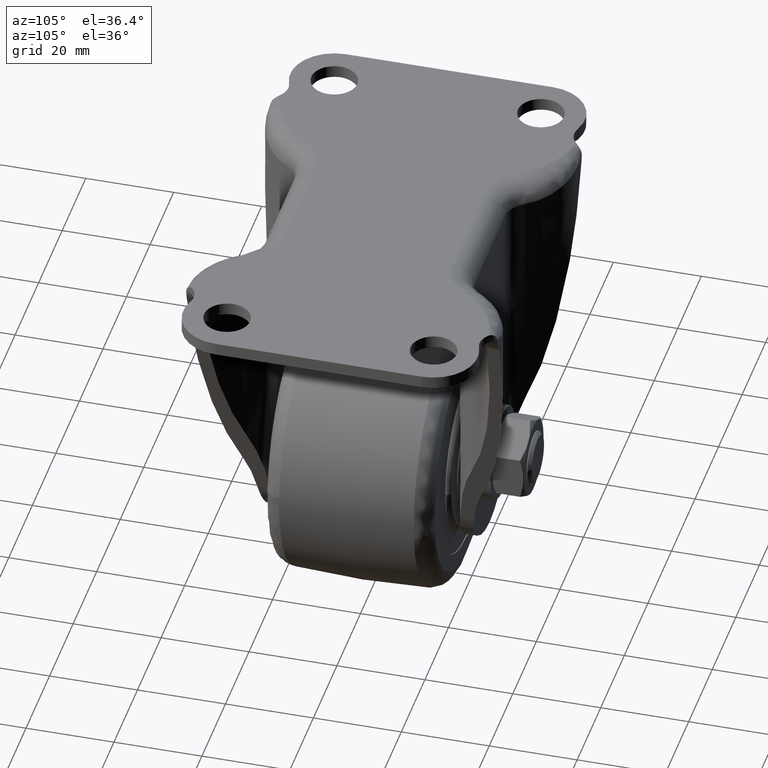
[diagram: clean part render]
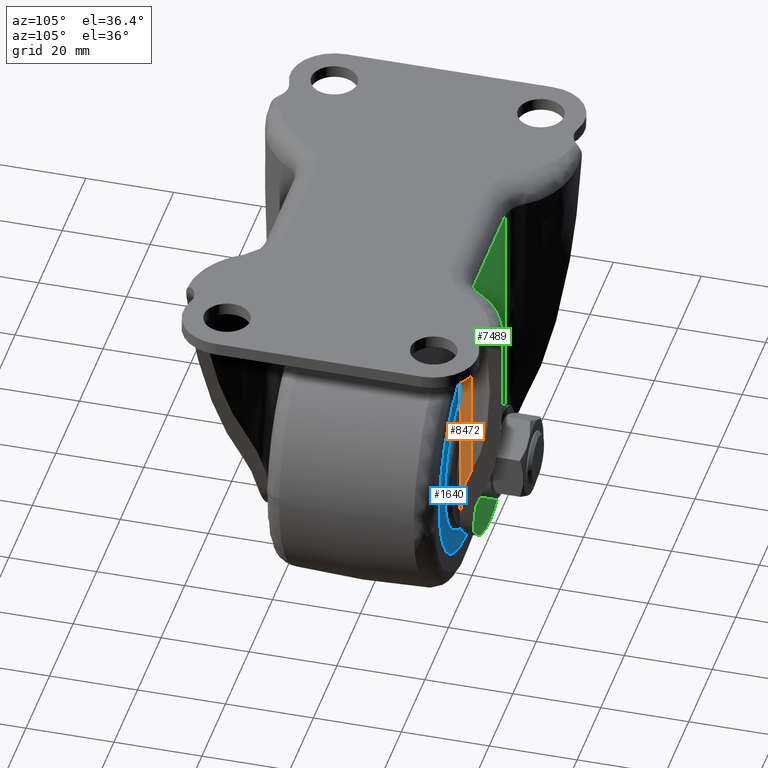
[diagram: same view with three faces highlighted in distinct colors, each labeled with its STEP entity id]
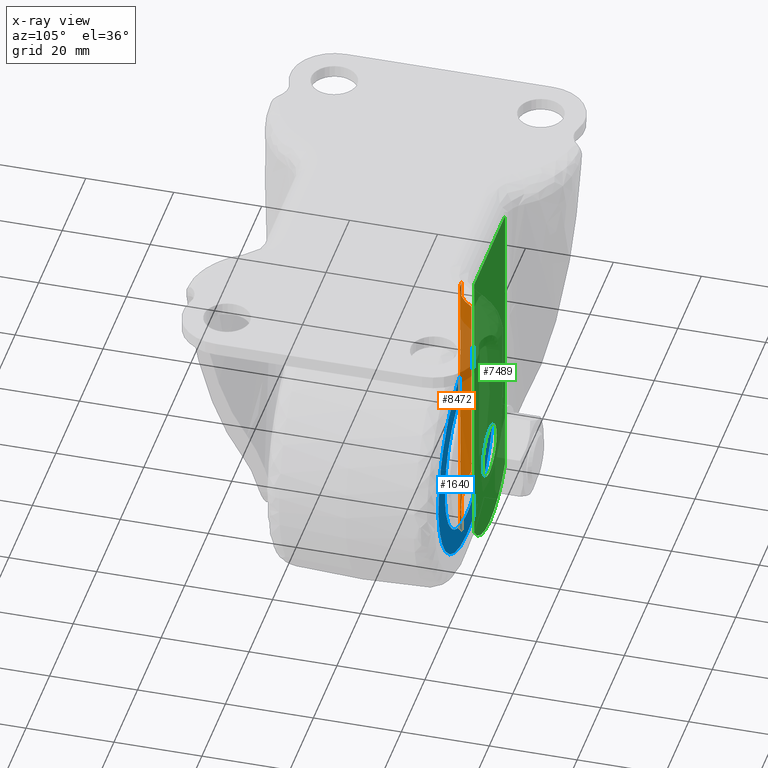
[diagram: x-ray of the same camera — body ghosted, the three highlighted faces saturated]
A machine part, auxiliary view with three faces highlighted in distinct colors.
The next image is the same camera in x-ray (body ghosted, the three faces saturated) — at least one of them is partly hidden behind the body in this view.
Their STEP definitions:

[orange] entity #8472 — the highlighted face is a freeform B-spline surface patch.
#6236=CARTESIAN_POINT('',(21.080107333667101,25.512244897959199,-5.0));
#6237=VERTEX_POINT('',#6236);
#6899=CARTESIAN_POINT('',(21.080107333667101,25.512244897959199,-49.956885919186902));
#6900=VERTEX_POINT('',#6899);
#6901=CARTESIAN_POINT('',(21.080107333667101,25.512244897959199,-49.956885919186902));
#6902=CARTESIAN_POINT('',(21.080107333667101,25.512244897959199,-5.0));
#6903=QUASI_UNIFORM_CURVE('',1,(#6901,#6902),.UNSPECIFIED.,.F.,.U.);
#6904=EDGE_CURVE('',#6900,#6237,#6903,.T.);
#8132=CARTESIAN_POINT('',(13.112529000000020,21.100000000000001,-4.900000000000000));
#8133=VERTEX_POINT('',#8132);
#8228=CARTESIAN_POINT('',(21.080107333667069,25.512244897959171,-5.000000000000004));
#8229=CARTESIAN_POINT('',(20.239276860630088,24.169079037959619,-4.983333333333339));
#8230=CARTESIAN_POINT('',(19.052652351195420,23.044396130704321,-4.966666666666675));
#8231=CARTESIAN_POINT('',(16.280106297463931,21.509029716013110,-4.933333333333345));
#8232=CARTESIAN_POINT('',(14.697171045338949,21.099999942227189,-4.916666666666680));
#8233=CARTESIAN_POINT('',(13.112529000000020,21.100000000000009,-4.900000000000016));
#8234=B_SPLINE_CURVE_WITH_KNOTS('',3,(#8228,#8229,#8230,#8231,#8232,#8233),.UNSPECIFIED.,.F.,.U.,(4,2,4),(0.0,0.500000000000000,1.0),.UNSPECIFIED.);
#8235=EDGE_CURVE('',#6237,#8133,#8234,.T.);
#8302=CARTESIAN_POINT('',(15.788895217503899,21.489058556165649,-67.391547508985795));
#8303=VERTEX_POINT('',#8302);
#8304=CARTESIAN_POINT('',(15.788895217503830,21.489058556165649,-67.391547508986037));
#8305=CARTESIAN_POINT('',(19.194841077491969,22.500668422671041,-56.168880158214748));
#8306=CARTESIAN_POINT('',(21.080107333667069,25.512244897959182,-49.956885919186888));
#8314=(BOUNDED_CURVE()B_SPLINE_CURVE(2,(#8304,#8305,#8306),.UNSPECIFIED.,.F.,.U.)CURVE()GEOMETRIC_REPRESENTATION_ITEM()QUASI_UNIFORM_CURVE()RATIONAL_B_SPLINE_CURVE((1.0,0.935409879223286,1.0))REPRESENTATION_ITEM(''));
#8315=EDGE_CURVE('',#8303,#6900,#8314,.T.);
#8344=CARTESIAN_POINT('',(13.112529000000020,21.100000000000001,-72.615372927514201));
#8345=VERTEX_POINT('',#8344);
#8346=CARTESIAN_POINT('',(15.788895217503921,21.489058556165681,-67.391547508985795));
#8347=CARTESIAN_POINT('',(15.646575439579390,21.446787745804709,-67.860494342183003));
#8348=CARTESIAN_POINT('',(15.483462071229230,21.401947286091300,-68.322953423001366));
#8349=CARTESIAN_POINT('',(15.207106676891669,21.335846078978530,-69.007177449102187));
#8350=CARTESIAN_POINT('',(15.109697933568620,21.314014322052881,-69.233672584219661));
#8351=CARTESIAN_POINT('',(14.904097497136020,21.271712032895248,-69.683522199246582));
#8352=CARTESIAN_POINT('',(14.795657535954010,21.251206571490901,-69.907315927701831));
#8353=CARTESIAN_POINT('',(14.457111584893029,21.193846112030752,-70.567657822053263));
#8354=CARTESIAN_POINT('',(14.213133463797851,21.160955276960109,-70.994879121076394));
#8355=CARTESIAN_POINT('',(13.689547193383200,21.114045803952340,-71.824051931997616));
#8356=CARTESIAN_POINT('',(13.409937116718719,21.099999989157119,-72.226001807740602));
#8357=CARTESIAN_POINT('',(13.112529000000009,21.100000000000009,-72.615372927514201));
#8358=B_SPLINE_CURVE_WITH_KNOTS('',3,(#8346,#8347,#8348,#8349,#8350,#8351,#8352,#8353,#8354,#8355,#8356,#8357),.UNSPECIFIED.,.F.,.U.,(4,2,2,2,2,4),(0.0,0.249999999999998,0.375000000000000,0.500000000000003,0.750000000000001,1.0),.UNSPECIFIED.);
#8359=EDGE_CURVE('',#8303,#8345,#8358,.T.);
#8447=CARTESIAN_POINT('',(21.211843276919328,25.729139092884932,-74.308257250702056));
#8448=CARTESIAN_POINT('',(21.211843276919328,25.729139092884932,-3.164793568732449));
#8449=CARTESIAN_POINT('',(18.329650854473226,20.836147722419444,-74.308257250702056));
#8450=CARTESIAN_POINT('',(18.329650854473226,20.836147722419444,-3.164793568732449));
#8451=CARTESIAN_POINT('',(12.657539776064127,21.111017920229685,-74.308257250702056));
#8452=CARTESIAN_POINT('',(12.657539776064127,21.111017920229685,-3.164793568732449));
#8460=(BOUNDED_SURFACE()B_SPLINE_SURFACE(1,2,((#8447,#8449,#8451),(#8448,#8450,#8452)),.UNSPECIFIED.,.F.,.F.,.U.)B_SPLINE_SURFACE_WITH_KNOTS((2,2),(3,3),(0.0,71.143463681969607),(0.0,10.475846028672720),.UNSPECIFIED.)GEOMETRIC_REPRESENTATION_ITEM()RATIONAL_B_SPLINE_SURFACE(((1.0,0.852347922485207,0.991643694164557),(1.0,0.852347922485207,0.991643694164557)))REPRESENTATION_ITEM('')SURFACE());
#8461=ORIENTED_EDGE('',*,*,#6904,.T.);
#8462=ORIENTED_EDGE('',*,*,#8235,.T.);
#8463=CARTESIAN_POINT('',(13.112529000000020,21.100000000000001,-72.615372927514201));
#8464=CARTESIAN_POINT('',(13.112529000000020,21.100000000000001,-4.900000000000000));
#8465=QUASI_UNIFORM_CURVE('',1,(#8463,#8464),.UNSPECIFIED.,.F.,.U.);
#8466=EDGE_CURVE('',#8345,#8133,#8465,.T.);
#8467=ORIENTED_EDGE('',*,*,#8466,.F.);
#8468=ORIENTED_EDGE('',*,*,#8359,.F.);
#8469=ORIENTED_EDGE('',*,*,#8315,.T.);
#8470=EDGE_LOOP('',(#8461,#8462,#8467,#8468,#8469));
#8471=FACE_OUTER_BOUND('',#8470,.T.);
#8472=ADVANCED_FACE('',(#8471),#8460,.T.);

[blue] entity #1640 — the highlighted face is a freeform B-spline surface patch.
#1460=CARTESIAN_POINT('',(-12.734558856848199,18.800000000000001,-46.080573383283138));
#1461=VERTEX_POINT('',#1460);
#1467=CARTESIAN_POINT('',(0.0,18.800000000000001,-41.000000000000689));
#1468=VERTEX_POINT('',#1467);
#1469=CARTESIAN_POINT('',(0.0,18.800000000000001,-41.000000000000689));
#1470=CARTESIAN_POINT('',(-7.380750966507145,18.800000000000001,-41.000000000000696));
#1471=CARTESIAN_POINT('',(-12.734558856848228,18.799999999999994,-46.080573383283109));
#1479=(BOUNDED_CURVE()B_SPLINE_CURVE(2,(#1469,#1470,#1471),.UNSPECIFIED.,.F.,.U.)B_SPLINE_CURVE_WITH_KNOTS((3,3),(0.500000000000000,0.621049517735568),.UNSPECIFIED.)CURVE()GEOMETRIC_REPRESENTATION_ITEM()RATIONAL_B_SPLINE_CURVE((1.0,0.858181668458453,0.853699662030244))REPRESENTATION_ITEM(''));
#1480=EDGE_CURVE('',#1468,#1461,#1479,.T.);
#1482=CARTESIAN_POINT('',(12.734558856848199,18.800000000000001,-72.919426616718255));
#1483=VERTEX_POINT('',#1482);
#1484=CARTESIAN_POINT('',(12.734558856848228,18.799999999999994,-72.919426616718269));
#1485=CARTESIAN_POINT('',(18.500000000000000,18.800000000000001,-67.448227908295422));
#1486=CARTESIAN_POINT('',(18.500000000000000,18.800000000000001,-59.500000000000703));
#1487=CARTESIAN_POINT('',(18.500000000000000,18.800000000000008,-41.000000000000689));
#1488=CARTESIAN_POINT('',(0.0,18.800000000000001,-41.000000000000689));
#1496=(BOUNDED_CURVE()B_SPLINE_CURVE(2,(#1484,#1485,#1486,#1487,#1488),.UNSPECIFIED.,.F.,.U.)B_SPLINE_CURVE_WITH_KNOTS((3,2,3),(0.121049517735568,0.250000000000000,0.500000000000000),.UNSPECIFIED.)CURVE()GEOMETRIC_REPRESENTATION_ITEM()RATIONAL_B_SPLINE_CURVE((0.853699662030244,0.848925112728095,1.0,0.707106781186548,1.0))REPRESENTATION_ITEM(''));
#1497=EDGE_CURVE('',#1483,#1468,#1496,.T.);
#1527=CARTESIAN_POINT('',(0.0,18.800000000000001,-78.000000000000696));
#1528=VERTEX_POINT('',#1527);
#1529=CARTESIAN_POINT('',(0.0,18.800000000000001,-78.000000000000696));
#1530=CARTESIAN_POINT('',(7.380750966507144,18.800000000000001,-78.000000000000711));
#1531=CARTESIAN_POINT('',(12.734558856848230,18.799999999999997,-72.919426616718283));
#1539=(BOUNDED_CURVE()B_SPLINE_CURVE(2,(#1529,#1530,#1531),.UNSPECIFIED.,.F.,.U.)B_SPLINE_CURVE_WITH_KNOTS((3,3),(0.0,0.121049517735568),.UNSPECIFIED.)CURVE()GEOMETRIC_REPRESENTATION_ITEM()RATIONAL_B_SPLINE_CURVE((1.0,0.858181668458453,0.853699662030244))REPRESENTATION_ITEM(''));
#1540=EDGE_CURVE('',#1528,#1483,#1539,.T.);
#1542=CARTESIAN_POINT('',(-12.734558856848228,18.799999999999994,-46.080573383283109));
#1543=CARTESIAN_POINT('',(-18.500000000000004,18.800000000000004,-51.551772091705971));
#1544=CARTESIAN_POINT('',(-18.500000000000000,18.800000000000001,-59.500000000000703));
#1545=CARTESIAN_POINT('',(-18.500000000000000,18.800000000000008,-78.000000000000696));
#1546=CARTESIAN_POINT('',(0.0,18.800000000000001,-78.000000000000696));
#1554=(BOUNDED_CURVE()B_SPLINE_CURVE(2,(#1542,#1543,#1544,#1545,#1546),.UNSPECIFIED.,.F.,.U.)B_SPLINE_CURVE_WITH_KNOTS((3,2,3),(0.621049517735568,0.750000000000000,1.0),.UNSPECIFIED.)CURVE()GEOMETRIC_REPRESENTATION_ITEM()RATIONAL_B_SPLINE_CURVE((0.853699662030244,0.848925112728094,1.0,0.707106781186548,1.0))REPRESENTATION_ITEM(''));
#1555=EDGE_CURVE('',#1461,#1528,#1554,.T.);
#1563=CARTESIAN_POINT('',(-26.397046691183618,18.800000000000001,-85.897637303567123));
#1564=CARTESIAN_POINT('',(-26.397046691183618,18.800000000000001,-33.102361408972101));
#1565=CARTESIAN_POINT('',(26.397045832875520,18.800000000000001,-85.897637303567123));
#1566=CARTESIAN_POINT('',(26.397045832875520,18.800000000000001,-33.102361408972101));
#1567=B_SPLINE_SURFACE_WITH_KNOTS('',1,1,((#1563,#1565),(#1564,#1566)),.UNSPECIFIED.,.F.,.F.,.U.,(2,2),(2,2),(0.0,52.795275894595022),(0.0,52.794092524059153),.UNSPECIFIED.);
#1568=CARTESIAN_POINT('',(-23.955271403320442,18.800000000019590,-58.034870656569304));
#1569=VERTEX_POINT('',#1568);
#1570=CARTESIAN_POINT('',(0.0,18.800000000000001,-83.500034000000582));
#1571=VERTEX_POINT('',#1570);
#1572=CARTESIAN_POINT('',(-23.955271403320442,18.800000000019597,-58.034870656569296));
#1573=CARTESIAN_POINT('',(-24.000033999970686,18.800000000019313,-58.766751535394874));
#1574=CARTESIAN_POINT('',(-24.000033999971141,18.800000000019011,-59.500000000002437));
#1575=CARTESIAN_POINT('',(-24.000033999985956,18.800000000009216,-83.500034000001435));
#1576=CARTESIAN_POINT('',(0.0,18.800000000000001,-83.500034000000582));
#1584=(BOUNDED_CURVE()B_SPLINE_CURVE(2,(#1572,#1573,#1574,#1575,#1576),.UNSPECIFIED.,.F.,.U.)B_SPLINE_CURVE_WITH_KNOTS((3,2,3),(0.739333233653926,0.750000000000000,1.0),.UNSPECIFIED.)CURVE()GEOMETRIC_REPRESENTATION_ITEM()RATIONAL_B_SPLINE_CURVE((0.976072623361382,0.987503105882269,1.0,0.707106781186547,1.0))REPRESENTATION_ITEM(''));
#1585=EDGE_CURVE('',#1569,#1571,#1584,.T.);
#1586=ORIENTED_EDGE('',*,*,#1585,.F.);
#1587=CARTESIAN_POINT('',(0.0,18.800000000000001,-35.499966000000803));
#1588=VERTEX_POINT('',#1587);
#1589=CARTESIAN_POINT('',(0.0,18.800000000000001,-35.499966000000803));
#1590=CARTESIAN_POINT('',(-22.577013169150185,18.800000000009799,-35.499966000001692));
#1591=CARTESIAN_POINT('',(-23.955271403320442,18.800000000019597,-58.034870656569296));
#1599=(BOUNDED_CURVE()B_SPLINE_CURVE(2,(#1589,#1590,#1591),.UNSPECIFIED.,.F.,.U.)B_SPLINE_CURVE_WITH_KNOTS((3,3),(0.500000000000000,0.739333233653926),.UNSPECIFIED.)CURVE()GEOMETRIC_REPRESENTATION_ITEM()RATIONAL_B_SPLINE_CURVE((1.0,0.719603675304278,0.976072623361382))REPRESENTATION_ITEM(''));
#1600=EDGE_CURVE('',#1588,#1569,#1599,.T.);
#1601=ORIENTED_EDGE('',*,*,#1600,.F.);
#1602=CARTESIAN_POINT('',(23.955271403320449,18.800000000019601,-60.965129343432103));
#1603=VERTEX_POINT('',#1602);
#1604=CARTESIAN_POINT('',(23.955271403320449,18.800000000019597,-60.965129343432103));
#1605=CARTESIAN_POINT('',(24.000033999970693,18.800000000019320,-60.233248464606511));
#1606=CARTESIAN_POINT('',(24.000033999971141,18.800000000019018,-59.499999999998927));
#1607=CARTESIAN_POINT('',(24.000033999985956,18.800000000009216,-35.499965999999951));
#1608=CARTESIAN_POINT('',(0.0,18.800000000000001,-35.499966000000803));
#1616=(BOUNDED_CURVE()B_SPLINE_CURVE(2,(#1604,#1605,#1606,#1607,#1608),.UNSPECIFIED.,.F.,.U.)B_SPLINE_CURVE_WITH_KNOTS((3,2,3),(0.239333233653926,0.250000000000000,0.500000000000000),.UNSPECIFIED.)CURVE()GEOMETRIC_REPRESENTATION_ITEM()RATIONAL_B_SPLINE_CURVE((0.976072623361382,0.987503105882269,1.0,0.707106781186547,1.0))REPRESENTATION_ITEM(''));
#1617=EDGE_CURVE('',#1603,#1588,#1616,.T.);
#1618=ORIENTED_EDGE('',*,*,#1617,.F.);
#1619=CARTESIAN_POINT('',(0.0,18.800000000000001,-83.500034000000582));
#1620=CARTESIAN_POINT('',(22.577013169150177,18.800000000009796,-83.500033999999673));
#1621=CARTESIAN_POINT('',(23.955271403320449,18.800000000019597,-60.965129343432103));
#1629=(BOUNDED_CURVE()B_SPLINE_CURVE(2,(#1619,#1620,#1621),.UNSPECIFIED.,.F.,.U.)B_SPLINE_CURVE_WITH_KNOTS((3,3),(0.0,0.239333233653926),.UNSPECIFIED.)CURVE()GEOMETRIC_REPRESENTATION_ITEM()RATIONAL_B_SPLINE_CURVE((1.0,0.719603675304278,0.976072623361382))REPRESENTATION_ITEM(''));
#1630=EDGE_CURVE('',#1571,#1603,#1629,.T.);
#1631=ORIENTED_EDGE('',*,*,#1630,.F.);
#1632=EDGE_LOOP('',(#1586,#1601,#1618,#1631));
#1633=FACE_OUTER_BOUND('',#1632,.T.);
#1634=ORIENTED_EDGE('',*,*,#1480,.T.);
#1635=ORIENTED_EDGE('',*,*,#1555,.T.);
#1636=ORIENTED_EDGE('',*,*,#1540,.T.);
#1637=ORIENTED_EDGE('',*,*,#1497,.T.);
#1638=EDGE_LOOP('',(#1634,#1635,#1636,#1637));
#1639=FACE_BOUND('',#1638,.T.);
#1640=ADVANCED_FACE('',(#1633,#1639),#1567,.T.);

[green] entity #7489 — the highlighted face is a freeform B-spline surface patch.
#3287=CARTESIAN_POINT('',(0.0,24.0,-53.495033999999883));
#3288=VERTEX_POINT('',#3287);
#3289=CARTESIAN_POINT('',(6.004737349292119,24.0,-59.447597450695909));
#3290=VERTEX_POINT('',#3289);
#3291=CARTESIAN_POINT('',(0.0,24.0,-53.495033999999883));
#3292=CARTESIAN_POINT('',(5.952790114706149,23.999999999999993,-53.495033999999883));
#3293=CARTESIAN_POINT('',(6.004737349292120,24.000000000000004,-59.447597450695909));
#3301=(BOUNDED_CURVE()B_SPLINE_CURVE(2,(#3291,#3292,#3293),.UNSPECIFIED.,.F.,.U.)B_SPLINE_CURVE_WITH_KNOTS((3,3),(0.0,0.248460105655082),.UNSPECIFIED.)CURVE()GEOMETRIC_REPRESENTATION_ITEM()RATIONAL_B_SPLINE_CURVE((1.0,0.708910879631811,0.996414028077422))REPRESENTATION_ITEM(''));
#3302=EDGE_CURVE('',#3288,#3290,#3301,.T.);
#3343=CARTESIAN_POINT('',(-6.004737349292119,24.0,-59.552402549304091));
#3344=VERTEX_POINT('',#3343);
#3350=CARTESIAN_POINT('',(-6.004737349292119,24.000000000000007,-59.552402549304098));
#3351=CARTESIAN_POINT('',(-6.004966000000110,24.000000000000004,-59.526201773493689));
#3352=CARTESIAN_POINT('',(-6.004966000000110,24.0,-59.500000000000000));
#3353=CARTESIAN_POINT('',(-6.004966000000110,24.0,-53.495033999999897));
#3354=CARTESIAN_POINT('',(0.0,24.0,-53.495033999999883));
#3362=(BOUNDED_CURVE()B_SPLINE_CURVE(2,(#3350,#3351,#3352,#3353,#3354),.UNSPECIFIED.,.F.,.U.)B_SPLINE_CURVE_WITH_KNOTS((3,2,3),(0.748460105655081,0.750000000000000,1.0),.UNSPECIFIED.)CURVE()GEOMETRIC_REPRESENTATION_ITEM()RATIONAL_B_SPLINE_CURVE((0.996414028077421,0.998195901554737,1.0,0.707106781186547,1.0))REPRESENTATION_ITEM(''));
#3363=EDGE_CURVE('',#3344,#3288,#3362,.T.);
#3386=CARTESIAN_POINT('',(0.0,24.0,-65.504966000000110));
#3387=VERTEX_POINT('',#3386);
#3388=CARTESIAN_POINT('',(6.004737349292120,23.999999999999996,-59.447597450695916));
#3389=CARTESIAN_POINT('',(6.004966000000110,24.000000000000004,-59.473798226506318));
#3390=CARTESIAN_POINT('',(6.004966000000110,24.0,-59.500000000000000));
#3391=CARTESIAN_POINT('',(6.004966000000110,24.0,-65.504966000000110));
#3392=CARTESIAN_POINT('',(0.0,24.0,-65.504966000000110));
#3400=(BOUNDED_CURVE()B_SPLINE_CURVE(2,(#3388,#3389,#3390,#3391,#3392),.UNSPECIFIED.,.F.,.U.)B_SPLINE_CURVE_WITH_KNOTS((3,2,3),(0.248460105655081,0.250000000000000,0.500000000000000),.UNSPECIFIED.)CURVE()GEOMETRIC_REPRESENTATION_ITEM()RATIONAL_B_SPLINE_CURVE((0.996414028077421,0.998195901554737,1.0,0.707106781186547,1.0))REPRESENTATION_ITEM(''));
#3401=EDGE_CURVE('',#3290,#3387,#3400,.T.);
#3403=CARTESIAN_POINT('',(0.0,24.0,-65.504966000000110));
#3404=CARTESIAN_POINT('',(-5.952790114706141,24.0,-65.504966000000110));
#3405=CARTESIAN_POINT('',(-6.004737349292119,24.000000000000007,-59.552402549304098));
#3413=(BOUNDED_CURVE()B_SPLINE_CURVE(2,(#3403,#3404,#3405),.UNSPECIFIED.,.F.,.U.)B_SPLINE_CURVE_WITH_KNOTS((3,3),(0.500000000000000,0.748460105655081),.UNSPECIFIED.)CURVE()GEOMETRIC_REPRESENTATION_ITEM()RATIONAL_B_SPLINE_CURVE((1.0,0.708910879631811,0.996414028077421))REPRESENTATION_ITEM(''));
#3414=EDGE_CURVE('',#3387,#3344,#3413,.T.);
#5420=CARTESIAN_POINT('',(13.112529342704841,24.0,-5.0));
#5421=VERTEX_POINT('',#5420);
#5481=CARTESIAN_POINT('',(-13.112339000000080,24.0,-5.0));
#5482=VERTEX_POINT('',#5481);
#5504=CARTESIAN_POINT('',(-13.112339000000080,24.0,-5.0));
#5505=CARTESIAN_POINT('',(13.112529342704841,24.0,-5.0));
#5506=QUASI_UNIFORM_CURVE('',1,(#5504,#5505),.UNSPECIFIED.,.F.,.U.);
#5507=EDGE_CURVE('',#5482,#5421,#5506,.T.);
#6769=CARTESIAN_POINT('',(13.112529342704841,24.0,-72.615372478840001));
#6770=VERTEX_POINT('',#6769);
#6771=CARTESIAN_POINT('',(13.112529342704841,24.0,-72.615372478840001));
#6772=CARTESIAN_POINT('',(13.112529342704841,24.0,-5.0));
#6773=QUASI_UNIFORM_CURVE('',1,(#6771,#6772),.UNSPECIFIED.,.F.,.U.);
#6774=EDGE_CURVE('',#6770,#5421,#6773,.T.);
#7450=CARTESIAN_POINT('',(-14.422271122889310,24.0,-82.801091042401353));
#7451=CARTESIAN_POINT('',(-14.422271122889310,24.0,-1.298712852291991));
#7452=CARTESIAN_POINT('',(14.422462168999850,24.0,-82.801091042401353));
#7453=CARTESIAN_POINT('',(14.422462168999850,24.0,-1.298712852291991));
#7454=B_SPLINE_SURFACE_WITH_KNOTS('',1,1,((#7450,#7452),(#7451,#7453)),.UNSPECIFIED.,.F.,.F.,.U.,(2,2),(2,2),(0.0,81.502378190109368),(0.0,28.844733291889160),.UNSPECIFIED.);
#7455=CARTESIAN_POINT('',(-13.112339000000080,24.0,-72.615621673442291));
#7456=VERTEX_POINT('',#7455);
#7457=CARTESIAN_POINT('',(-13.112339000000080,24.0,-72.615621673442291));
#7458=CARTESIAN_POINT('',(-13.112339000000080,24.0,-5.0));
#7459=QUASI_UNIFORM_CURVE('',1,(#7457,#7458),.UNSPECIFIED.,.F.,.U.);
#7460=EDGE_CURVE('',#7456,#5482,#7459,.T.);
#7461=ORIENTED_EDGE('',*,*,#7460,.T.);
#7462=ORIENTED_EDGE('',*,*,#5507,.T.);
#7463=ORIENTED_EDGE('',*,*,#6774,.F.);
#7464=CARTESIAN_POINT('',(13.112529342704841,24.0,-72.615372478840001));
#7465=CARTESIAN_POINT('',(12.513694163171230,24.000000000000028,-73.399533812134436));
#7466=CARTESIAN_POINT('',(11.362158806741540,23.999999999999979,-74.655421500674606));
#7467=CARTESIAN_POINT('',(9.292689107968856,23.999999999999972,-76.310347966508772));
#7468=CARTESIAN_POINT('',(7.097399232465058,24.000000000000160,-77.578521784448242));
#7469=CARTESIAN_POINT('',(4.391367965155017,23.999999999999972,-78.593426984411977));
#7470=CARTESIAN_POINT('',(1.584085181951407,23.999999999999950,-79.112962804440997));
#7471=CARTESIAN_POINT('',(-1.029592508031974,23.999999999999929,-79.122253924450732));
#7472=CARTESIAN_POINT('',(-3.614517992947546,23.999999999999790,-78.767728759974403));
#7473=CARTESIAN_POINT('',(-5.855887676374194,24.000000000001460,-78.097369149883050));
#7474=CARTESIAN_POINT('',(-8.389496293345964,23.999999999999421,-76.889466408560310));
#7475=CARTESIAN_POINT('',(-10.807502943259040,24.000000000000281,-75.225381711884253));
#7476=CARTESIAN_POINT('',(-12.393770037797429,23.999999999999840,-73.556663751274513));
#7477=CARTESIAN_POINT('',(-13.112339000000080,24.0,-72.615621673442291));
#7478=B_SPLINE_CURVE_WITH_KNOTS('',3,(#7464,#7465,#7466,#7467,#7468,#7469,#7470,#7471,#7472,#7473,#7474,#7475,#7476,#7477),.UNSPECIFIED.,.F.,.U.,(4,1,1,1,1,1,1,1,1,1,1,4),(0.000000103521721,2.959991370886055,5.091235973152823,7.932860400872084,10.537681024274541,13.734521770971259,16.457674061395100,18.352131106323849,21.548946117377419,23.443371553237260,26.758596878922798,30.310618580746411),.UNSPECIFIED.);
#7479=EDGE_CURVE('',#6770,#7456,#7478,.T.);
#7480=ORIENTED_EDGE('',*,*,#7479,.T.);
#7481=EDGE_LOOP('',(#7461,#7462,#7463,#7480));
#7482=FACE_OUTER_BOUND('',#7481,.T.);
#7483=ORIENTED_EDGE('',*,*,#3414,.F.);
#7484=ORIENTED_EDGE('',*,*,#3401,.F.);
#7485=ORIENTED_EDGE('',*,*,#3302,.F.);
#7486=ORIENTED_EDGE('',*,*,#3363,.F.);
#7487=EDGE_LOOP('',(#7483,#7484,#7485,#7486));
#7488=FACE_BOUND('',#7487,.T.);
#7489=ADVANCED_FACE('',(#7482,#7488),#7454,.T.);